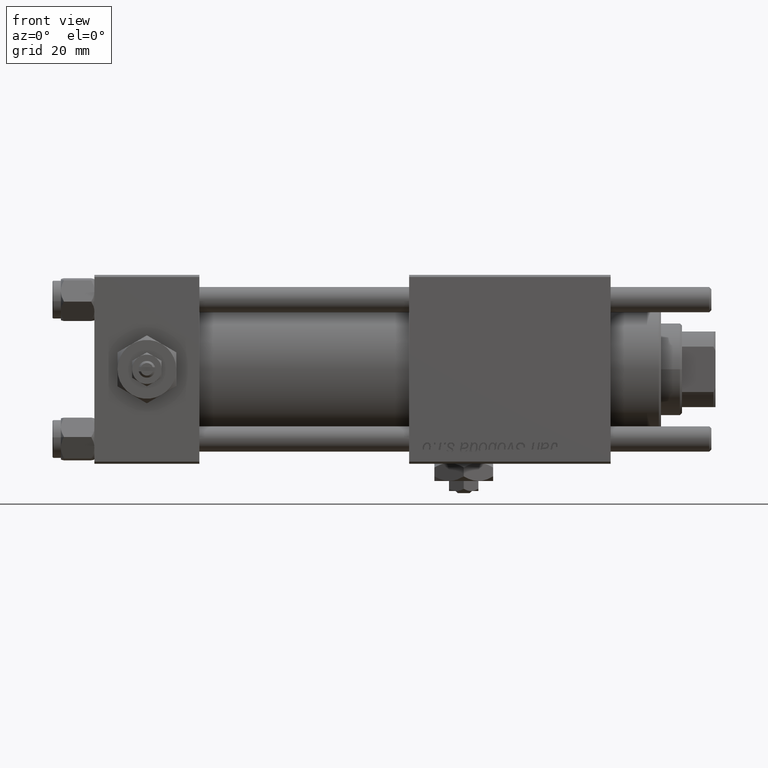
[diagram: clean part render]
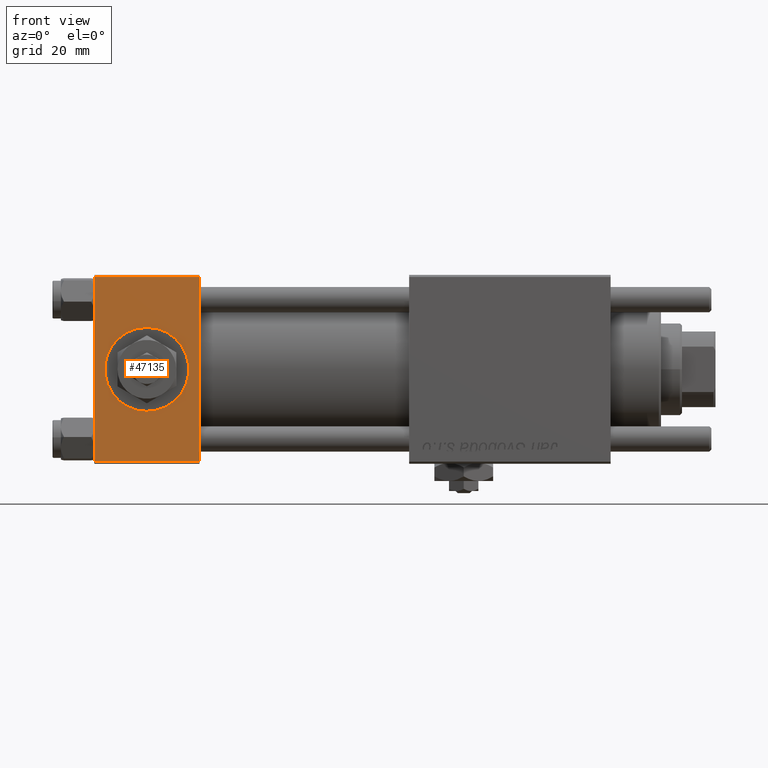
[diagram: same view with one face highlighted and labeled with its STEP entity id]
A machine part, front view. The second image highlights one B-rep face of the part: STEP entity #47135.
In plain terms, the highlighted planar face has unit normal (0, 1, 0).
Its self-contained STEP definition (entity closure, byte-faithful):
#2330 = DIRECTION ( 'NONE',  ( 1.000000000000000000, 0.000000000000000000, 0.000000000000000000 ) ) ;
#2789 = VECTOR ( 'NONE', #52457, 1000.000000000000000 ) ;
#2910 = ORIENTED_EDGE ( 'NONE', *, *, #42448, .T. ) ;
#4205 = ORIENTED_EDGE ( 'NONE', *, *, #29611, .F. ) ;
#4965 = PLANE ( 'NONE',  #55844 ) ;
#9721 = FACE_OUTER_BOUND ( 'NONE', #31257, .T. ) ;
#12311 = ORIENTED_EDGE ( 'NONE', *, *, #38303, .T. ) ;
#13343 = ORIENTED_EDGE ( 'NONE', *, *, #55803, .T. ) ;
#13348 = VERTEX_POINT ( 'NONE', #42462 ) ;
#14823 = CARTESIAN_POINT ( 'NONE',  ( 25.00000000000000000, -22.50000000000000000, 22.50000000000000000 ) ) ;
#15119 = CARTESIAN_POINT ( 'NONE',  ( 12.50000000000000178, -22.50000000000000000, 9.999999999999996447 ) ) ;
#16717 = ORIENTED_EDGE ( 'NONE', *, *, #21401, .F. ) ;
#16726 = EDGE_CURVE ( 'NONE', #13348, #21331, #46997, .T. ) ;
#16779 = LINE ( 'NONE', #39100, #2789 ) ;
#17069 = LINE ( 'NONE', #35200, #36715 ) ;
#18984 = ORIENTED_EDGE ( 'NONE', *, *, #16726, .F. ) ;
#21331 = VERTEX_POINT ( 'NONE', #15119 ) ;
#21401 = EDGE_CURVE ( 'NONE', #24844, #57646, #42471, .T. ) ;
#21603 = CARTESIAN_POINT ( 'NONE',  ( 25.00000000000000000, -22.50000000000000000, 22.00000000000000000 ) ) ;
#21822 = DIRECTION ( 'NONE',  ( 0.000000000000000000, 0.000000000000000000, -1.000000000000000000 ) ) ;
#24844 = VERTEX_POINT ( 'NONE', #21603 ) ;
#24933 = CARTESIAN_POINT ( 'NONE',  ( 25.00000000000000000, -22.50000000000000000, -21.99999999999998579 ) ) ;
#25206 = VECTOR ( 'NONE', #2330, 1000.000000000000000 ) ;
#26693 = DIRECTION ( 'NONE',  ( 0.000000000000000000, -1.000000000000000000, -8.673617379884036705E-17 ) ) ;
#27470 = AXIS2_PLACEMENT_3D ( 'NONE', #44525, #26693, #29985 ) ;
#27558 = DIRECTION ( 'NONE',  ( -0.000000000000000000, 1.000000000000000000, 0.000000000000000000 ) ) ;
#28150 = DIRECTION ( 'NONE',  ( 0.000000000000000000, -0.000000000000000000, 1.000000000000000000 ) ) ;
#28504 = DIRECTION ( 'NONE',  ( 0.000000000000000000, 0.000000000000000000, -1.000000000000000000 ) ) ;
#29611 = EDGE_CURVE ( 'NONE', #21331, #13348, #46440, .T. ) ;
#29985 = DIRECTION ( 'NONE',  ( 0.000000000000000000, 0.000000000000000000, -1.000000000000000000 ) ) ;
#31257 = EDGE_LOOP ( 'NONE', ( #2910, #12311, #16717, #13343 ) ) ;
#35200 = CARTESIAN_POINT ( 'NONE',  ( 0.000000000000000000, -22.50000000000000000, 22.50000000000000000 ) ) ;
#36301 = CARTESIAN_POINT ( 'NONE',  ( 0.000000000000000000, -22.50000000000000000, -21.99999999999997158 ) ) ;
#36715 = VECTOR ( 'NONE', #21822, 1000.000000000000000 ) ;
#37071 = CARTESIAN_POINT ( 'NONE',  ( 25.00000000000000000, -22.50000000000000000, 22.50000000000000000 ) ) ;
#37821 = DIRECTION ( 'NONE',  ( 0.000000000000000000, -1.000000000000000000, -8.673617379884036705E-17 ) ) ;
#38303 = EDGE_CURVE ( 'NONE', #42047, #57646, #47516, .T. ) ;
#38601 = VECTOR ( 'NONE', #28504, 1000.000000000000000 ) ;
#39100 = CARTESIAN_POINT ( 'NONE',  ( 25.00000000000000000, -22.50000000000000000, 22.00000000000000000 ) ) ;
#40375 = AXIS2_PLACEMENT_3D ( 'NONE', #43418, #37821, #52342 ) ;
#42047 = VERTEX_POINT ( 'NONE', #36301 ) ;
#42448 = EDGE_CURVE ( 'NONE', #47827, #42047, #17069, .T. ) ;
#42462 = CARTESIAN_POINT ( 'NONE',  ( 12.50000000000000000, -22.50000000000000000, -9.999999999999996447 ) ) ;
#42471 = LINE ( 'NONE', #14823, #38601 ) ;
#43418 = CARTESIAN_POINT ( 'NONE',  ( 12.50000000000000000, -22.50000000000000000, 0.000000000000000000 ) ) ;
#44525 = CARTESIAN_POINT ( 'NONE',  ( 12.50000000000000000, -22.50000000000000000, 0.000000000000000000 ) ) ;
#44543 = EDGE_LOOP ( 'NONE', ( #18984, #4205 ) ) ;
#45085 = CARTESIAN_POINT ( 'NONE',  ( 0.000000000000000000, -22.50000000000000000, 22.00000000000000000 ) ) ;
#46440 = CIRCLE ( 'NONE', #27470, 9.999999999999996447 ) ;
#46997 = CIRCLE ( 'NONE', #40375, 9.999999999999996447 ) ;
#47135 = ADVANCED_FACE ( 'NONE', ( #58760, #9721 ), #4965, .F. ) ;
#47516 = LINE ( 'NONE', #24933, #25206 ) ;
#47827 = VERTEX_POINT ( 'NONE', #45085 ) ;
#49254 = CARTESIAN_POINT ( 'NONE',  ( 25.00000000000000000, -22.50000000000000000, -21.99999999999997158 ) ) ;
#52342 = DIRECTION ( 'NONE',  ( 0.000000000000000000, 0.000000000000000000, -1.000000000000000000 ) ) ;
#52457 = DIRECTION ( 'NONE',  ( -1.000000000000000000, 0.000000000000000000, 0.000000000000000000 ) ) ;
#55803 = EDGE_CURVE ( 'NONE', #24844, #47827, #16779, .T. ) ;
#55844 = AXIS2_PLACEMENT_3D ( 'NONE', #37071, #27558, #28150 ) ;
#57646 = VERTEX_POINT ( 'NONE', #49254 ) ;
#58760 = FACE_BOUND ( 'NONE', #44543, .T. ) ;